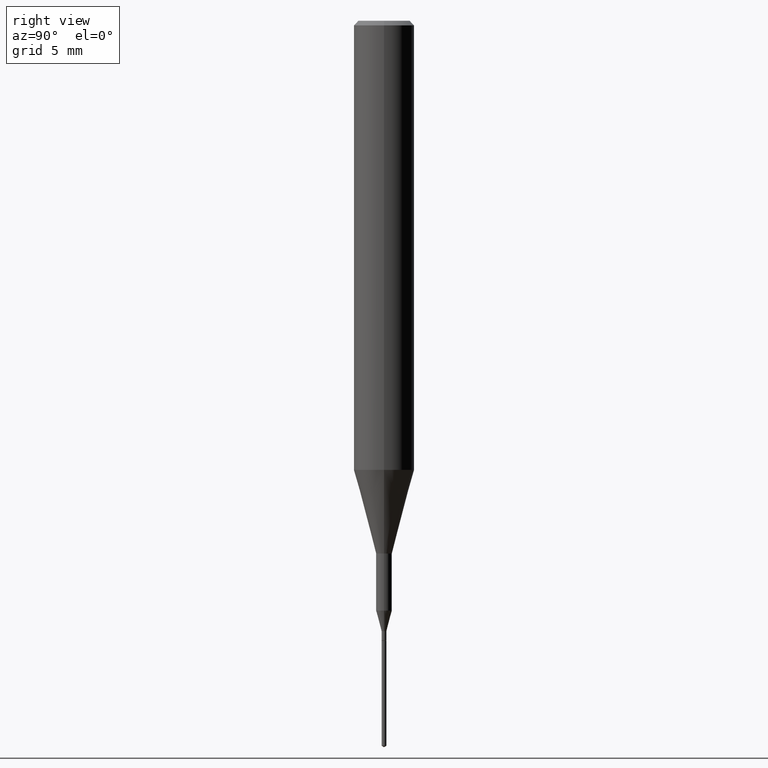
[diagram: clean part render]
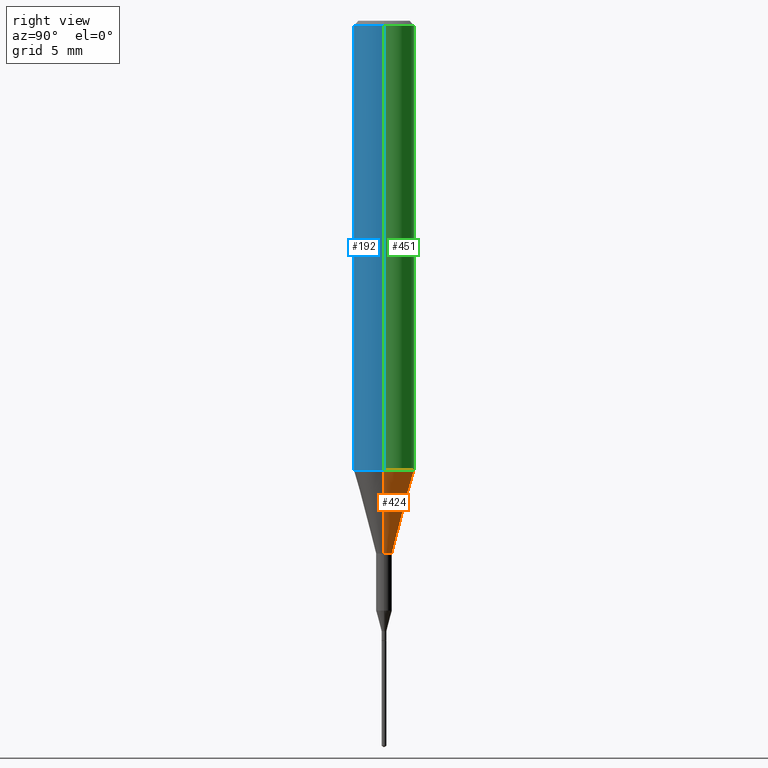
[diagram: same view with three faces highlighted in distinct colors, each labeled with its STEP entity id]
A machine part, right view with three faces highlighted in distinct colors.
Their STEP definitions:

[orange] entity #424 — the highlighted conical surface has half-angle 15 deg.
#14 = CARTESIAN_POINT ( 'NONE',  ( 0.06250000000000011102, -3.674409299134196572E-15, -0.9273926501499395458 ) ) ;
#60 = DIRECTION ( 'NONE',  ( 0.2588190451025214611, 1.565188264969620982E-15, 0.9659258262890679791 ) ) ;
#65 = AXIS2_PLACEMENT_3D ( 'NONE', #126, #520, #489 ) ;
#70 = VERTEX_POINT ( 'NONE', #504 ) ;
#76 = VERTEX_POINT ( 'NONE', #286 ) ;
#107 = LINE ( 'NONE', #14, #386 ) ;
#126 = CARTESIAN_POINT ( 'NONE',  ( 2.267909797027042920E-29, -3.237974131778804114E-15, -0.9273926501499395458 ) ) ;
#139 = DIRECTION ( 'NONE',  ( -2.445468806185136597E-29, 3.491481338843145583E-15, 1.000000000000000000 ) ) ;
#169 = EDGE_CURVE ( 'NONE', #395, #171, #107, .T. ) ;
#171 = VERTEX_POINT ( 'NONE', #515 ) ;
#178 = EDGE_CURVE ( 'NONE', #76, #70, #472, .T. ) ;
#180 = DIRECTION ( 'NONE',  ( 1.000000000000000000, -6.982962677686265922E-15, 0.000000000000000000 ) ) ;
#188 = EDGE_LOOP ( 'NONE', ( #490, #577, #350, #434 ) ) ;
#209 = AXIS2_PLACEMENT_3D ( 'NONE', #254, #337, #426 ) ;
#254 = CARTESIAN_POINT ( 'NONE',  ( 2.690015686803650369E-29, -3.840629472727460101E-15, -1.100000000000000089 ) ) ;
#281 = EDGE_CURVE ( 'NONE', #395, #76, #560, .T. ) ;
#286 = CARTESIAN_POINT ( 'NONE',  ( -0.01624999999999999709, -3.931235642409045081E-15, -1.100000000000000089 ) ) ;
#337 = DIRECTION ( 'NONE',  ( -2.445468806185136597E-29, 3.491481338843145583E-15, 1.000000000000000000 ) ) ;
#350 = ORIENTED_EDGE ( 'NONE', *, *, #568, .F. ) ;
#376 = CARTESIAN_POINT ( 'NONE',  ( -0.06250000000000011102, -2.793884921928740709E-15, -0.9273926501499395458 ) ) ;
#386 = VECTOR ( 'NONE', #60, 39.37007874015748143 ) ;
#389 = AXIS2_PLACEMENT_3D ( 'NONE', #551, #139, #180 ) ;
#395 = VERTEX_POINT ( 'NONE', #486 ) ;
#424 = ADVANCED_FACE ( 'NONE', ( #536 ), #508, .T. ) ;
#426 = DIRECTION ( 'NONE',  ( 1.000000000000000000, -6.982962677686259611E-15, 0.000000000000000000 ) ) ;
#434 = ORIENTED_EDGE ( 'NONE', *, *, #169, .F. ) ;
#472 = LINE ( 'NONE', #376, #488 ) ;
#486 = CARTESIAN_POINT ( 'NONE',  ( 0.01624999999999999709, -3.954102616239861778E-15, -1.100000000000000089 ) ) ;
#488 = VECTOR ( 'NONE', #562, 39.37007874015748143 ) ;
#489 = DIRECTION ( 'NONE',  ( 1.000000000000000000, -6.982962677686265922E-15, 0.000000000000000000 ) ) ;
#490 = ORIENTED_EDGE ( 'NONE', *, *, #281, .T. ) ;
#504 = CARTESIAN_POINT ( 'NONE',  ( -0.06250000000000011102, -2.793884921928740709E-15, -0.9273926501499395458 ) ) ;
#508 = CONICAL_SURFACE ( 'NONE', #65, 0.06250000000000011102, 0.2617993877991501850 ) ;
#515 = CARTESIAN_POINT ( 'NONE',  ( 0.06250000000000011102, -3.674409299134196572E-15, -0.9273926501499395458 ) ) ;
#520 = DIRECTION ( 'NONE',  ( -2.445468806185136597E-29, 3.491481338843145583E-15, 1.000000000000000000 ) ) ;
#536 = FACE_OUTER_BOUND ( 'NONE', #188, .T. ) ;
#551 = CARTESIAN_POINT ( 'NONE',  ( 2.267909797027042920E-29, -3.237974131778804114E-15, -0.9273926501499395458 ) ) ;
#560 = CIRCLE ( 'NONE', #209, 0.01624999999999999709 ) ;
#562 = DIRECTION ( 'NONE',  ( -0.2588190451025214611, 5.211531920934550253E-15, 0.9659258262890679791 ) ) ;
#568 = EDGE_CURVE ( 'NONE', #171, #70, #571, .T. ) ;
#571 = CIRCLE ( 'NONE', #389, 0.06250000000000011102 ) ;
#577 = ORIENTED_EDGE ( 'NONE', *, *, #178, .T. ) ;

[blue] entity #192 — the highlighted cylindrical surface (edge-blend (fillet) strip) has radius 1.5875 mm, axis along (-0, 0, 1).
#7 = AXIS2_PLACEMENT_3D ( 'NONE', #145, #197, #147 ) ;
#38 = CARTESIAN_POINT ( 'NONE',  ( 0.06250000000000005551, -4.364351673553920638E-16, 3.047610484872462323E-30 ) ) ;
#53 = VECTOR ( 'NONE', #93, 39.37007874015748143 ) ;
#57 = FACE_OUTER_BOUND ( 'NONE', #253, .T. ) ;
#70 = VERTEX_POINT ( 'NONE', #504 ) ;
#71 = AXIS2_PLACEMENT_3D ( 'NONE', #265, #576, #165 ) ;
#72 = DIRECTION ( 'NONE',  ( -2.445468806185136877E-29, 3.491481338843145188E-15, 1.000000000000000000 ) ) ;
#93 = DIRECTION ( 'NONE',  ( -2.445468806185136877E-29, 3.491481338843145188E-15, 1.000000000000000000 ) ) ;
#104 = EDGE_CURVE ( 'NONE', #70, #171, #163, .T. ) ;
#111 = EDGE_CURVE ( 'NONE', #70, #394, #372, .T. ) ;
#145 = CARTESIAN_POINT ( 'NONE',  ( 0.000000000000000000, 0.000000000000000000, 0.000000000000000000 ) ) ;
#147 = DIRECTION ( 'NONE',  ( 1.000000000000000000, -6.982962677686266711E-15, 4.876176775795935232E-29 ) ) ;
#153 = ORIENTED_EDGE ( 'NONE', *, *, #380, .T. ) ;
#163 = CIRCLE ( 'NONE', #588, 0.06250000000000011102 ) ;
#164 = ORIENTED_EDGE ( 'NONE', *, *, #111, .F. ) ;
#165 = DIRECTION ( 'NONE',  ( 1.000000000000000000, -6.982962677686266711E-15, 0.000000000000000000 ) ) ;
#171 = VERTEX_POINT ( 'NONE', #515 ) ;
#192 = ADVANCED_FACE ( 'NONE', ( #57 ), #205, .T. ) ;
#197 = DIRECTION ( 'NONE',  ( -2.445468806185136597E-29, 3.491481338843145583E-15, 1.000000000000000000 ) ) ;
#205 = CYLINDRICAL_SURFACE ( 'NONE', #7, 0.06250000000000005551 ) ;
#219 = CARTESIAN_POINT ( 'NONE',  ( -0.06250000000000000000, -1.191264174815165938E-15, -0.009375000000000063838 ) ) ;
#253 = EDGE_LOOP ( 'NONE', ( #164, #439, #153, #345 ) ) ;
#255 = CIRCLE ( 'NONE', #71, 0.06250000000000000000 ) ;
#265 = CARTESIAN_POINT ( 'NONE',  ( 2.292627005798581061E-31, -3.273263755165471417E-17, -0.009375000000000063838 ) ) ;
#301 = EDGE_CURVE ( 'NONE', #394, #437, #255, .T. ) ;
#345 = ORIENTED_EDGE ( 'NONE', *, *, #301, .F. ) ;
#372 = LINE ( 'NONE', #554, #53 ) ;
#380 = EDGE_CURVE ( 'NONE', #171, #437, #438, .T. ) ;
#394 = VERTEX_POINT ( 'NONE', #219 ) ;
#418 = CARTESIAN_POINT ( 'NONE',  ( 2.267909797027042920E-29, -3.237974131778804114E-15, -0.9273926501499395458 ) ) ;
#437 = VERTEX_POINT ( 'NONE', #573 ) ;
#438 = LINE ( 'NONE', #38, #499 ) ;
#439 = ORIENTED_EDGE ( 'NONE', *, *, #104, .T. ) ;
#455 = DIRECTION ( 'NONE',  ( 1.000000000000000000, -6.982962677686265922E-15, 0.000000000000000000 ) ) ;
#498 = DIRECTION ( 'NONE',  ( -2.445468806185136597E-29, 3.491481338843145583E-15, 1.000000000000000000 ) ) ;
#499 = VECTOR ( 'NONE', #72, 39.37007874015748143 ) ;
#504 = CARTESIAN_POINT ( 'NONE',  ( -0.06250000000000011102, -2.793884921928740709E-15, -0.9273926501499395458 ) ) ;
#515 = CARTESIAN_POINT ( 'NONE',  ( 0.06250000000000011102, -3.674409299134196572E-15, -0.9273926501499395458 ) ) ;
#554 = CARTESIAN_POINT ( 'NONE',  ( -0.06250000000000005551, 4.440892098500630106E-16, -3.074334431409318916E-30 ) ) ;
#573 = CARTESIAN_POINT ( 'NONE',  ( 0.06250000000000000000, -4.691678049070463404E-16, -0.009375000000000063838 ) ) ;
#576 = DIRECTION ( 'NONE',  ( -2.445468806185136597E-29, 3.491481338843145583E-15, 1.000000000000000000 ) ) ;
#588 = AXIS2_PLACEMENT_3D ( 'NONE', #418, #498, #455 ) ;

[green] entity #451 — the highlighted cylindrical surface (edge-blend (fillet) strip) has radius 1.5875 mm, axis along (-0, 0, 1).
#29 = FACE_OUTER_BOUND ( 'NONE', #397, .T. ) ;
#37 = AXIS2_PLACEMENT_3D ( 'NONE', #393, #500, #495 ) ;
#38 = CARTESIAN_POINT ( 'NONE',  ( 0.06250000000000005551, -4.364351673553920638E-16, 3.047610484872462323E-30 ) ) ;
#53 = VECTOR ( 'NONE', #93, 39.37007874015748143 ) ;
#70 = VERTEX_POINT ( 'NONE', #504 ) ;
#72 = DIRECTION ( 'NONE',  ( -2.445468806185136877E-29, 3.491481338843145188E-15, 1.000000000000000000 ) ) ;
#80 = ORIENTED_EDGE ( 'NONE', *, *, #380, .F. ) ;
#93 = DIRECTION ( 'NONE',  ( -2.445468806185136877E-29, 3.491481338843145188E-15, 1.000000000000000000 ) ) ;
#97 = CIRCLE ( 'NONE', #177, 0.06250000000000000000 ) ;
#111 = EDGE_CURVE ( 'NONE', #70, #394, #372, .T. ) ;
#139 = DIRECTION ( 'NONE',  ( -2.445468806185136597E-29, 3.491481338843145583E-15, 1.000000000000000000 ) ) ;
#171 = VERTEX_POINT ( 'NONE', #515 ) ;
#177 = AXIS2_PLACEMENT_3D ( 'NONE', #566, #341, #430 ) ;
#180 = DIRECTION ( 'NONE',  ( 1.000000000000000000, -6.982962677686265922E-15, 0.000000000000000000 ) ) ;
#215 = CYLINDRICAL_SURFACE ( 'NONE', #37, 0.06250000000000005551 ) ;
#219 = CARTESIAN_POINT ( 'NONE',  ( -0.06250000000000000000, -1.191264174815165938E-15, -0.009375000000000063838 ) ) ;
#298 = EDGE_CURVE ( 'NONE', #437, #394, #97, .T. ) ;
#341 = DIRECTION ( 'NONE',  ( -2.445468806185136597E-29, 3.491481338843145583E-15, 1.000000000000000000 ) ) ;
#372 = LINE ( 'NONE', #554, #53 ) ;
#380 = EDGE_CURVE ( 'NONE', #171, #437, #438, .T. ) ;
#389 = AXIS2_PLACEMENT_3D ( 'NONE', #551, #139, #180 ) ;
#393 = CARTESIAN_POINT ( 'NONE',  ( 0.000000000000000000, 0.000000000000000000, 0.000000000000000000 ) ) ;
#394 = VERTEX_POINT ( 'NONE', #219 ) ;
#397 = EDGE_LOOP ( 'NONE', ( #487, #403, #578, #80 ) ) ;
#403 = ORIENTED_EDGE ( 'NONE', *, *, #111, .T. ) ;
#430 = DIRECTION ( 'NONE',  ( 1.000000000000000000, -6.982962677686266711E-15, 0.000000000000000000 ) ) ;
#437 = VERTEX_POINT ( 'NONE', #573 ) ;
#438 = LINE ( 'NONE', #38, #499 ) ;
#451 = ADVANCED_FACE ( 'NONE', ( #29 ), #215, .T. ) ;
#487 = ORIENTED_EDGE ( 'NONE', *, *, #568, .T. ) ;
#495 = DIRECTION ( 'NONE',  ( 1.000000000000000000, -6.982962677686266711E-15, 4.876176775795935232E-29 ) ) ;
#499 = VECTOR ( 'NONE', #72, 39.37007874015748143 ) ;
#500 = DIRECTION ( 'NONE',  ( -2.445468806185136597E-29, 3.491481338843145583E-15, 1.000000000000000000 ) ) ;
#504 = CARTESIAN_POINT ( 'NONE',  ( -0.06250000000000011102, -2.793884921928740709E-15, -0.9273926501499395458 ) ) ;
#515 = CARTESIAN_POINT ( 'NONE',  ( 0.06250000000000011102, -3.674409299134196572E-15, -0.9273926501499395458 ) ) ;
#551 = CARTESIAN_POINT ( 'NONE',  ( 2.267909797027042920E-29, -3.237974131778804114E-15, -0.9273926501499395458 ) ) ;
#554 = CARTESIAN_POINT ( 'NONE',  ( -0.06250000000000005551, 4.440892098500630106E-16, -3.074334431409318916E-30 ) ) ;
#566 = CARTESIAN_POINT ( 'NONE',  ( 2.292627005798581061E-31, -3.273263755165471417E-17, -0.009375000000000063838 ) ) ;
#568 = EDGE_CURVE ( 'NONE', #171, #70, #571, .T. ) ;
#571 = CIRCLE ( 'NONE', #389, 0.06250000000000011102 ) ;
#573 = CARTESIAN_POINT ( 'NONE',  ( 0.06250000000000000000, -4.691678049070463404E-16, -0.009375000000000063838 ) ) ;
#578 = ORIENTED_EDGE ( 'NONE', *, *, #298, .F. ) ;